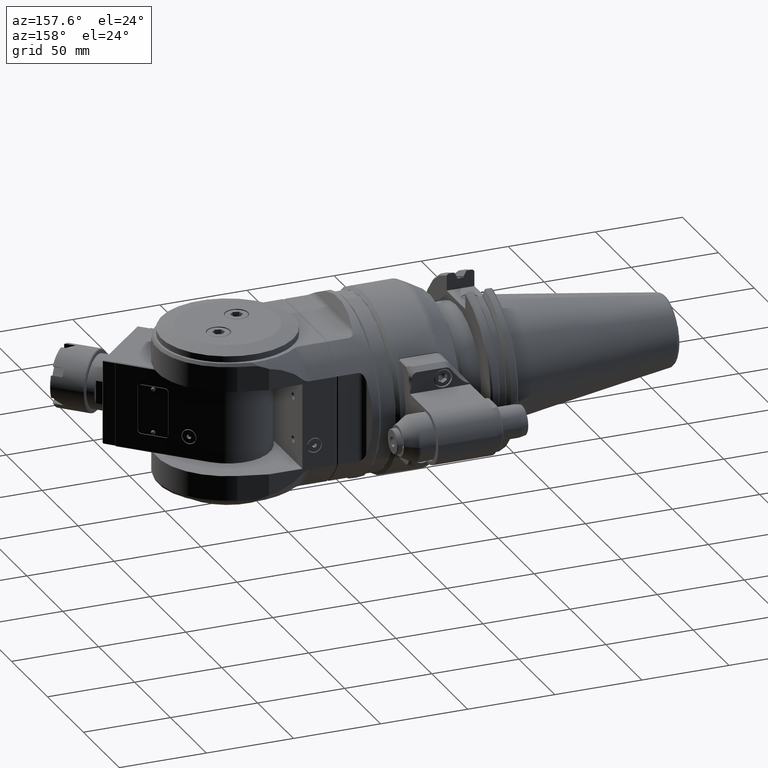
[diagram: clean part render]
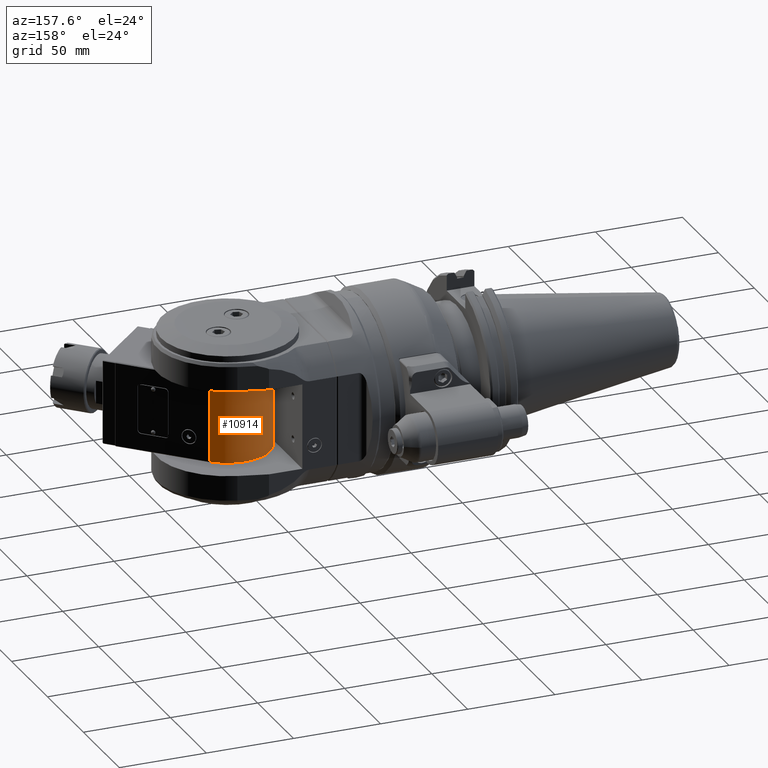
[diagram: same view with one face highlighted and labeled with its STEP entity id]
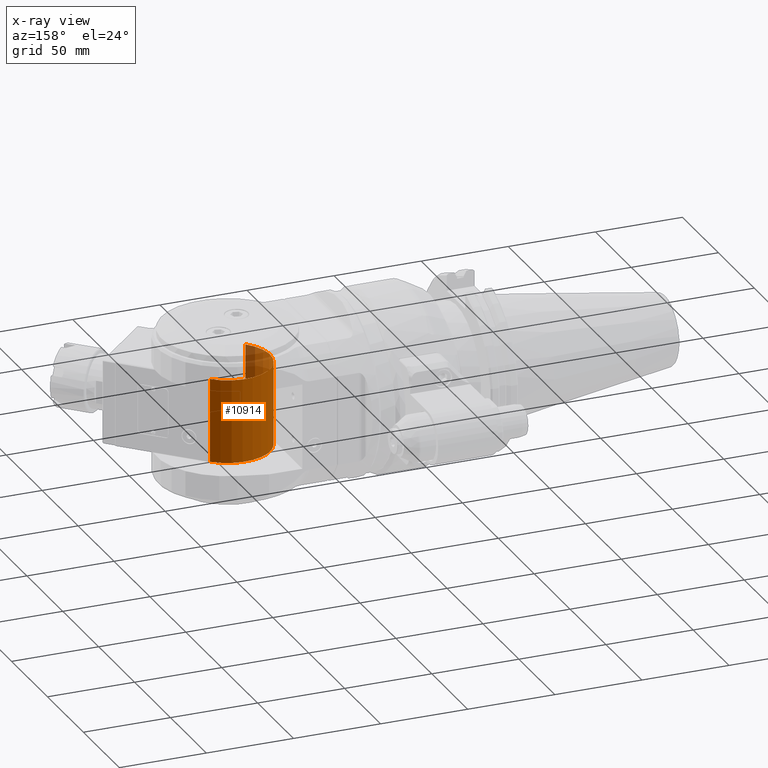
[diagram: x-ray of the same camera — body ghosted, the highlighted face saturated]
A machine part, auxiliary view. The second image highlights one B-rep face of the part: STEP entity #10914.
The next image is the same camera in x-ray: the body ghosted, the highlighted face saturated — about 12% of this face is hidden behind the body in this view.
In plain terms, the highlighted cylindrical surface (partial cylindrical patch) has radius 24.5 mm, axis along (0, -0, -1).
Its self-contained STEP definition (entity closure, byte-faithful):
#1348=FACE_OUTER_BOUND('',#2057,.T.);
#2057=EDGE_LOOP('',(#9469,#9470,#9471,#9472));
#2631=CIRCLE('',#12066,24.5);
#2632=CIRCLE('',#12068,24.5);
#3403=LINE('',#59753,#4219);
#3427=LINE('',#59817,#4243);
#4219=VECTOR('',#14570,48.);
#4243=VECTOR('',#14632,48.);
#5229=VERTEX_POINT('',#59736);
#5233=VERTEX_POINT('',#59752);
#5251=VERTEX_POINT('',#59802);
#5254=VERTEX_POINT('',#59816);
#6673=EDGE_CURVE('',#5233,#5229,#3403,.T.);
#6705=EDGE_CURVE('',#5254,#5251,#3427,.T.);
#6709=EDGE_CURVE('',#5254,#5229,#2631,.T.);
#6710=EDGE_CURVE('',#5233,#5251,#2632,.T.);
#9469=ORIENTED_EDGE('',*,*,#6673,.T.);
#9470=ORIENTED_EDGE('',*,*,#6709,.F.);
#9471=ORIENTED_EDGE('',*,*,#6705,.T.);
#9472=ORIENTED_EDGE('',*,*,#6710,.F.);
#10413=CYLINDRICAL_SURFACE('',#12067,24.5);
#10914=ADVANCED_FACE('',(#1348),#10413,.T.);
#12066=AXIS2_PLACEMENT_3D('',#59824,#14642,#14643);
#12067=AXIS2_PLACEMENT_3D('',#59825,#14644,#14645);
#12068=AXIS2_PLACEMENT_3D('',#59826,#14646,#14647);
#14570=DIRECTION('',(0.,0.,1.));
#14632=DIRECTION('',(0.,0.,-1.));
#14642=DIRECTION('center_axis',(0.,0.,1.));
#14643=DIRECTION('ref_axis',(0.,1.,0.));
#14644=DIRECTION('center_axis',(0.,0.,1.));
#14645=DIRECTION('ref_axis',(-1.,-1.22464679914735E-16,0.));
#14646=DIRECTION('center_axis',(0.,0.,-1.));
#14647=DIRECTION('ref_axis',(-1.,0.,0.));
#59736=CARTESIAN_POINT('',(107.,-24.5,24.));
#59752=CARTESIAN_POINT('',(107.,-24.5,-24.));
#59753=CARTESIAN_POINT('',(107.,-24.5,-24.));
#59802=CARTESIAN_POINT('',(107.,24.5,-24.));
#59816=CARTESIAN_POINT('',(107.,24.5,24.));
#59817=CARTESIAN_POINT('',(107.,24.5,24.));
#59824=CARTESIAN_POINT('Origin',(107.,0.,24.));
#59825=CARTESIAN_POINT('Origin',(107.,0.,0.));
#59826=CARTESIAN_POINT('Origin',(107.,0.,-24.));